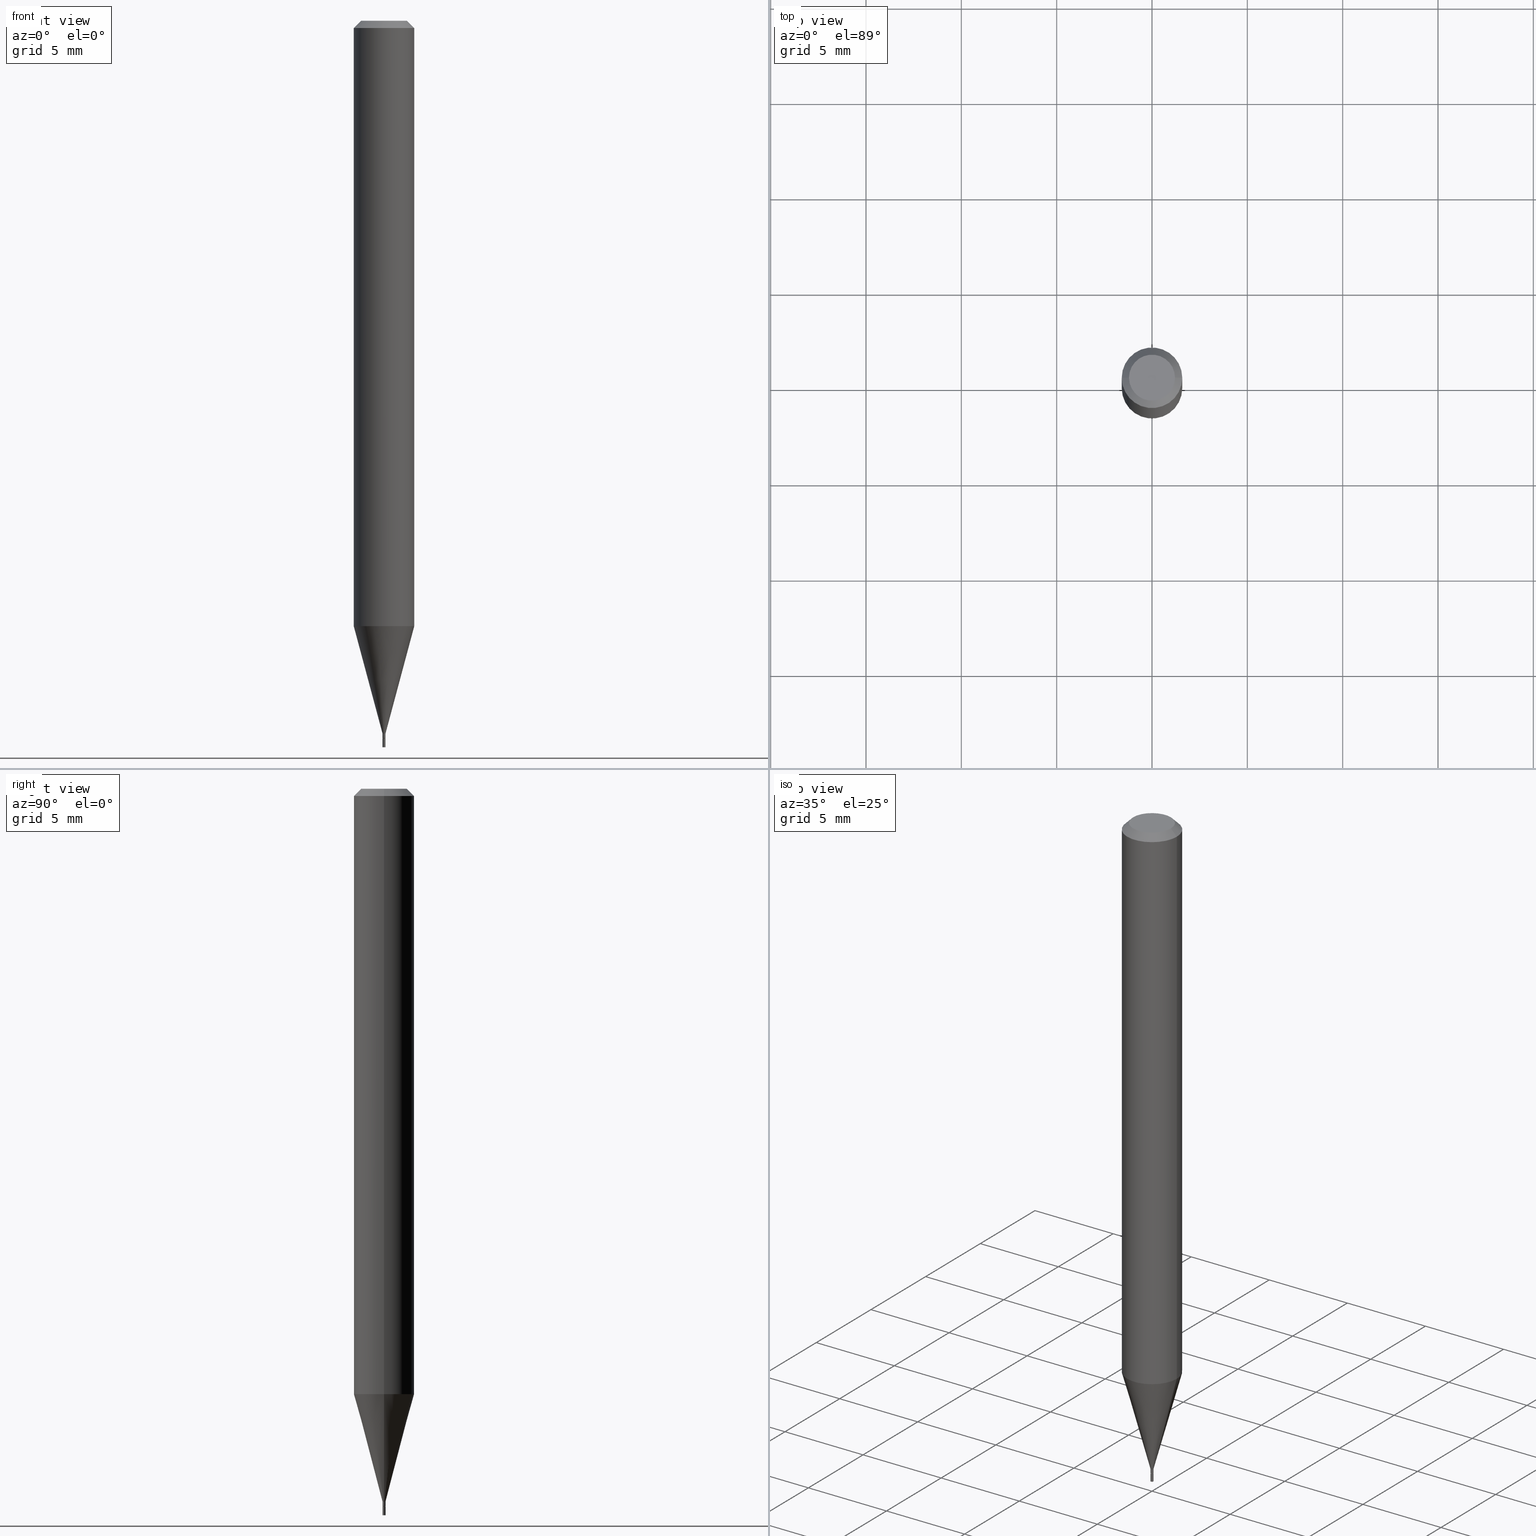
[diagram: canonical four-view strip — front | top / right | iso, engineering-drawing reading convention]
A machine part, canonical four-view strip (front | top / right | iso — engineering-drawing reading convention). The complete STEP part file that produces these views, byte-faithful:
ISO-10303-21;
HEADER;
FILE_DESCRIPTION (( 'STEP AP203' ),
    '1' );
FILE_NAME ('00812.STEP',
    '2024-03-19T22:26:41',
    ( '' ),
    ( '' ),
    'SwSTEP 2.0',
    'SolidWorks 2023',
    '' );
FILE_SCHEMA (( 'CONFIG_CONTROL_DESIGN' ));
ENDSEC;

DATA;
#1 = ORIENTED_EDGE ( 'NONE', *, *, #150, .F. ) ;
#2 = ORIENTED_EDGE ( 'NONE', *, *, #252, .T. ) ;
#3 = DATE_AND_TIME ( #115, #129 ) ;
#4 = EDGE_LOOP ( 'NONE', ( #1, #304, #443, #446 ) ) ;
#5 = APPROVAL_STATUS ( 'not_yet_approved' ) ;
#6 = CARTESIAN_POINT ( 'NONE',  ( 0.000000000000000000, 0.000000000000000000, 0.000000000000000000 ) ) ;
#7 = CIRCLE ( 'NONE', #67, 0.04749999999999999362 ) ;
#8 = APPROVAL_PERSON_ORGANIZATION ( #331, #16, #226 ) ;
#9 = APPROVAL_ROLE ( '' ) ;
#10 = DIRECTION ( 'NONE',  ( -2.445468806185136597E-29, 3.491481338843145583E-15, 1.000000000000000000 ) ) ;
#11 = ORIENTED_EDGE ( 'NONE', *, *, #141, .F. ) ;
#12 = ADVANCED_BREP_SHAPE_REPRESENTATION ( '00812', ( #393, #391, #192 ), #25 ) ;
#13 = SECURITY_CLASSIFICATION_LEVEL ( 'unclassified' ) ;
#14 = EDGE_CURVE ( 'NONE', #56, #132, #456, .T. ) ;
#15 = CARTESIAN_POINT ( 'NONE',  ( -0.04749999999999999362, 3.578768372314273615E-16, 3.591734821858150433E-15 ) ) ;
#16 = APPROVAL ( #156, 'UNSPECIFIED' ) ;
#17 = CARTESIAN_POINT ( 'NONE',  ( 3.668203209277705088E-31, -5.237222008264718399E-17, -0.01499999999999999944 ) ) ;
#18 = CARTESIAN_POINT ( 'NONE',  ( 0.000000000000000000, 0.000000000000000000, 0.000000000000000000 ) ) ;
#19 = CC_DESIGN_PERSON_AND_ORGANIZATION_ASSIGNMENT ( #124, #411, ( #256 ) ) ;
#20 = DIRECTION ( 'NONE',  ( -2.438088387897960049E-29, 3.491481338843145188E-15, 1.000000000000000000 ) ) ;
#21 = EDGE_LOOP ( 'NONE', ( #257, #151, #185, #92 ) ) ;
#22 = CLOSED_SHELL ( 'NONE', ( #113, #143, #37, #212 ) ) ;
#23 = DIRECTION ( 'NONE',  ( -2.445468806185136877E-29, 3.491481338843145188E-15, 1.000000000000000000 ) ) ;
#24 = VECTOR ( 'NONE', #270, 39.37007874015748143 ) ;
#25 =( GEOMETRIC_REPRESENTATION_CONTEXT ( 3 ) GLOBAL_UNCERTAINTY_ASSIGNED_CONTEXT ( ( #430 ) ) GLOBAL_UNIT_ASSIGNED_CONTEXT ( ( #376, #367, #81 ) ) REPRESENTATION_CONTEXT ( 'NONE', 'WORKASPACE' ) );
#26 = DIRECTION ( 'NONE',  ( -2.445468806185136597E-29, 3.491481338843145583E-15, 1.000000000000000000 ) ) ;
#27 = LINE ( 'NONE', #48, #116 ) ;
#28 = EDGE_LOOP ( 'NONE', ( #203, #275, #435, #120 ) ) ;
#29 = CARTESIAN_POINT ( 'NONE',  ( 0.003000000000000000062, -5.258170896297777797E-15, -1.500000000000000222 ) ) ;
#30 = FACE_OUTER_BOUND ( 'NONE', #261, .T. ) ;
#31 = ORIENTED_EDGE ( 'NONE', *, *, #321, .T. ) ;
#32 = PLANE ( 'NONE',  #465 ) ;
#33 = LINE ( 'NONE', #273, #354 ) ;
#34 = AXIS2_PLACEMENT_3D ( 'NONE', #459, #193, #166 ) ;
#35 = AXIS2_PLACEMENT_3D ( 'NONE', #55, #377, #188 ) ;
#36 = PRODUCT_DEFINITION_FORMATION_WITH_SPECIFIED_SOURCE ( 'ANY', '', #280, .NOT_KNOWN. ) ;
#37 = ADVANCED_FACE ( 'NONE', ( #416 ), #346, .T. ) ;
#38 = CC_DESIGN_PERSON_AND_ORGANIZATION_ASSIGNMENT ( #58, #405, ( #296 ) ) ;
#39 = LINE ( 'NONE', #282, #345 ) ;
#40 = VECTOR ( 'NONE', #232, 39.37007874015748143 ) ;
#41 = ADVANCED_FACE ( 'NONE', ( #97 ), #136, .F. ) ;
#42 = DIRECTION ( 'NONE',  ( 1.000000000000000000, -6.982962677686188613E-15, 0.000000000000000000 ) ) ;
#43 = CONICAL_SURFACE ( 'NONE', #309, 0.002500000000000000052, 0.7853981633974723708 ) ;
#44 = LOCAL_TIME ( 18, 26, 41.00000000000000000, #187 ) ;
#45 = PERSON_AND_ORGANIZATION ( #372, #320 ) ;
#46 = DIRECTION ( 'NONE',  ( 0.000000000000000000, 0.000000000000000000, 1.000000000000000000 ) ) ;
#47 = DIRECTION ( 'NONE',  ( -2.445468806185136597E-29, 3.491481338843145583E-15, 1.000000000000000000 ) ) ;
#48 = CARTESIAN_POINT ( 'NONE',  ( -0.003000000000000000062, 2.131628207280300602E-17, -1.475680527076471750E-31 ) ) ;
#49 = ORIENTED_EDGE ( 'NONE', *, *, #328, .T. ) ;
#50 = CIRCLE ( 'NONE', #101, 0.06250000000000000000 ) ;
#51 = ADVANCED_FACE ( 'NONE', ( #375 ), #70, .T. ) ;
#52 = LOCAL_TIME ( 18, 26, 41.00000000000000000, #90 ) ;
#53 = APPROVAL ( #363, 'UNSPECIFIED' ) ;
#54 = PERSON_AND_ORGANIZATION_ROLE ( 'creator' ) ;
#55 = CARTESIAN_POINT ( 'NONE',  ( 3.056696559640561437E-29, -4.364152578637758755E-15, -1.249942976949652174 ) ) ;
#56 = VERTEX_POINT ( 'NONE', #29 ) ;
#57 = ORIENTED_EDGE ( 'NONE', *, *, #266, .T. ) ;
#58 = PERSON_AND_ORGANIZATION ( #372, #320 ) ;
#59 = DIRECTION ( 'NONE',  ( 1.000000000000000000, -6.982962677686332186E-15, 0.000000000000000000 ) ) ;
#60 = DIRECTION ( 'NONE',  ( 1.000000000000000000, -6.982962677686266711E-15, 4.876176775795935793E-29 ) ) ;
#61 = ORIENTED_EDGE ( 'NONE', *, *, #290, .T. ) ;
#62 = FACE_OUTER_BOUND ( 'NONE', #329, .T. ) ;
#63 = DIRECTION ( 'NONE',  ( -2.445468806185136597E-29, 3.491481338843145583E-15, 1.000000000000000000 ) ) ;
#64 = ORIENTED_EDGE ( 'NONE', *, *, #78, .F. ) ;
#65 = EDGE_LOOP ( 'NONE', ( #103, #69, #263, #404 ) ) ;
#66 = CC_DESIGN_DATE_AND_TIME_ASSIGNMENT ( #295, #220, ( #256 ) ) ;
#67 = AXIS2_PLACEMENT_3D ( 'NONE', #392, #223, #253 ) ;
#68 = DIRECTION ( 'NONE',  ( -2.445468806185136597E-29, 3.491481338843145583E-15, 1.000000000000000000 ) ) ;
#69 = ORIENTED_EDGE ( 'NONE', *, *, #236, .T. ) ;
#70 = CYLINDRICAL_SURFACE ( 'NONE', #34, 0.002999999999999922434 ) ;
#71 = CARTESIAN_POINT ( 'NONE',  ( 0.002999999999999921566, -5.160409418810168864E-15, -1.471999999999999975 ) ) ;
#72 = CARTESIAN_POINT ( 'NONE',  ( 0.003000000000000000062, -2.094888803305880087E-17, 1.462853032738780615E-31 ) ) ;
#73 = CONICAL_SURFACE ( 'NONE', #176, 0.06250000000000000000, 0.7853981633973285970 ) ;
#74 = ADVANCED_FACE ( 'NONE', ( #389 ), #32, .F. ) ;
#75 = CONICAL_SURFACE ( 'NONE', #255, 0.002999999999999921566, 0.2617993877991500740 ) ;
#76 = AXIS2_PLACEMENT_3D ( 'NONE', #17, #68, #347 ) ;
#77 = CALENDAR_DATE ( 2024, 19, 3 ) ;
#78 = EDGE_CURVE ( 'NONE', #139, #265, #211, .T. ) ;
#79 = CIRCLE ( 'NONE', #371, 0.003000000000000000062 ) ;
#80 = PERSON_AND_ORGANIZATION_ROLE ( 'design_owner' ) ;
#81 =( NAMED_UNIT ( * ) SI_UNIT ( $, .STERADIAN. ) SOLID_ANGLE_UNIT ( ) );
#82 = DIRECTION ( 'NONE',  ( -2.445468806185136597E-29, 3.491481338843145583E-15, 1.000000000000000000 ) ) ;
#83 = ORIENTED_EDGE ( 'NONE', *, *, #457, .F. ) ;
#84 = ADVANCED_FACE ( 'NONE', ( #272 ), #73, .T. ) ;
#85 = CARTESIAN_POINT ( 'NONE',  ( 3.668203209277704895E-29, -5.237222008264718177E-15, -1.500000000000000222 ) ) ;
#86 = VERTEX_POINT ( 'NONE', #310 ) ;
#87 = DIRECTION ( 'NONE',  ( -0.2588190451025213501, 5.211531920934551042E-15, 0.9659258262890682012 ) ) ;
#88 = CLOSED_SHELL ( 'NONE', ( #51, #432, #84, #390, #183, #424, #197, #449, #41, #74, #447, #106 ) ) ;
#89 = CIRCLE ( 'NONE', #140, 0.003000000000000000062 ) ;
#90 = COORDINATED_UNIVERSAL_TIME_OFFSET ( 5, 0, .BEHIND. ) ;
#91 = DIRECTION ( 'NONE',  ( -2.445468806185136597E-29, 3.491481338843145583E-15, 1.000000000000000000 ) ) ;
#92 = ORIENTED_EDGE ( 'NONE', *, *, #237, .F. ) ;
#93 = CARTESIAN_POINT ( 'NONE',  ( 0.04749999999999999362, -4.035134999187516007E-16, 3.591734821858155166E-15 ) ) ;
#94 = DIRECTION ( 'NONE',  ( 1.000000000000000000, -6.982962677686266711E-15, 4.876176775795935232E-29 ) ) ;
#95 = FACE_OUTER_BOUND ( 'NONE', #175, .T. ) ;
#96 = VERTEX_POINT ( 'NONE', #93 ) ;
#97 = FACE_OUTER_BOUND ( 'NONE', #408, .T. ) ;
#98 = CARTESIAN_POINT ( 'NONE',  ( 0.06250000000000000000, -4.800587745993150425E-15, -1.249942976949652174 ) ) ;
#99 = DIRECTION ( 'NONE',  ( 0.2588190451025213501, 1.565188264969621968E-15, 0.9659258262890682012 ) ) ;
#100 = CIRCLE ( 'NONE', #355, 0.002999999999999922867 ) ;
#101 = AXIS2_PLACEMENT_3D ( 'NONE', #414, #91, #306 ) ;
#102 = AXIS2_PLACEMENT_3D ( 'NONE', #368, #286, #213 ) ;
#103 = ORIENTED_EDGE ( 'NONE', *, *, #267, .T. ) ;
#104 = DIRECTION ( 'NONE',  ( 1.000000000000000000, -6.982962677686332186E-15, 0.000000000000000000 ) ) ;
#105 = CARTESIAN_POINT ( 'NONE',  ( 3.668203209277704895E-29, -5.237222008264718177E-15, -1.500000000000000222 ) ) ;
#106 = ADVANCED_FACE ( 'NONE', ( #62 ), #314, .T. ) ;
#107 = EDGE_CURVE ( 'NONE', #278, #123, #200, .T. ) ;
#108 = DIRECTION ( 'NONE',  ( -2.445468806185136597E-29, 3.491481338843145583E-15, 1.000000000000000000 ) ) ;
#109 = AXIS2_PLACEMENT_3D ( 'NONE', #18, #164, #307 ) ;
#110 = CC_DESIGN_APPROVAL ( #53, ( #296 ) ) ;
#111 = AXIS2_PLACEMENT_3D ( 'NONE', #303, #378, #60 ) ;
#112 = EDGE_LOOP ( 'NONE', ( #61, #313 ) ) ;
#113 = ADVANCED_FACE ( 'NONE', ( #247 ), #349, .T. ) ;
#114 = EDGE_CURVE ( 'NONE', #86, #400, #218, .T. ) ;
#115 = CALENDAR_DATE ( 2024, 19, 3 ) ;
#116 = VECTOR ( 'NONE', #312, 39.37007874015748143 ) ;
#117 = PERSON_AND_ORGANIZATION ( #372, #320 ) ;
#118 = EDGE_CURVE ( 'NONE', #246, #426, #134, .T. ) ;
#119 = DIRECTION ( 'NONE',  ( -2.445468806185136597E-29, 3.491481338843145583E-15, 1.000000000000000000 ) ) ;
#120 = ORIENTED_EDGE ( 'NONE', *, *, #252, .F. ) ;
#121 = DATE_AND_TIME ( #444, #44 ) ;
#122 = CARTESIAN_POINT ( 'NONE',  ( 3.599730082704520905E-29, -5.139460530777110821E-15, -1.471999999999999975 ) ) ;
#123 = VERTEX_POINT ( 'NONE', #98 ) ;
#124 = PERSON_AND_ORGANIZATION ( #372, #320 ) ;
#125 = DIRECTION ( 'NONE',  ( 1.000000000000000000, -6.982962677686191769E-15, 0.000000000000000000 ) ) ;
#126 = VERTEX_POINT ( 'NONE', #452 ) ;
#127 = DIRECTION ( 'NONE',  ( 2.438088387897960049E-29, -3.491481338843145188E-15, -1.000000000000000000 ) ) ;
#128 = CONICAL_SURFACE ( 'NONE', #394, 0.002500000000000000052, 0.7853981633974723708 ) ;
#129 = LOCAL_TIME ( 18, 26, 41.00000000000000000, #297 ) ;
#130 = CARTESIAN_POINT ( 'NONE',  ( -0.002999999999999922867, -5.151313321423318731E-15, -1.481500000000000261 ) ) ;
#131 = CARTESIAN_POINT ( 'NONE',  ( 3.584916967085606921E-29, -5.356492647442320375E-15, -1.500000000000000222 ) ) ;
#132 = VERTEX_POINT ( 'NONE', #338 ) ;
#133 = DIRECTION ( 'NONE',  ( 1.000000000000000000, -6.982962677686332186E-15, 0.000000000000000000 ) ) ;
#134 = LINE ( 'NONE', #243, #24 ) ;
#135 = ORIENTED_EDGE ( 'NONE', *, *, #236, .F. ) ;
#136 = PLANE ( 'NONE',  #180 ) ;
#137 = PRODUCT_RELATED_PRODUCT_CATEGORY ( 'detail', '', ( #280 ) ) ;
#138 = DIRECTION ( 'NONE',  ( 1.000000000000000000, -6.982962677686191769E-15, 0.000000000000000000 ) ) ;
#139 = VERTEX_POINT ( 'NONE', #386 ) ;
#140 = AXIS2_PLACEMENT_3D ( 'NONE', #189, #10, #340 ) ;
#141 = EDGE_CURVE ( 'NONE', #400, #86, #299, .T. ) ;
#142 = DIRECTION ( 'NONE',  ( 1.000000000000000000, -6.982962677686265922E-15, 4.876176775795935793E-29 ) ) ;
#143 = ADVANCED_FACE ( 'NONE', ( #442 ), #209, .F. ) ;
#144 = DIRECTION ( 'NONE',  ( -2.445468806185136597E-29, 3.491481338843145583E-15, 1.000000000000000000 ) ) ;
#145 = CARTESIAN_POINT ( 'NONE',  ( -8.783475466943041190E-44, 1.254047510459085029E-29, 3.591734821858152800E-15 ) ) ;
#146 = CIRCLE ( 'NONE', #360, 0.04749999999999999362 ) ;
#147 = CARTESIAN_POINT ( 'NONE',  ( 0.000000000000000000, 0.000000000000000000, 0.000000000000000000 ) ) ;
#148 = ORIENTED_EDGE ( 'NONE', *, *, #397, .F. ) ;
#149 = AXIS2_PLACEMENT_3D ( 'NONE', #155, #325, #171 ) ;
#150 = EDGE_CURVE ( 'NONE', #96, #86, #202, .T. ) ;
#151 = ORIENTED_EDGE ( 'NONE', *, *, #292, .T. ) ;
#152 = EDGE_CURVE ( 'NONE', #123, #265, #50, .T. ) ;
#153 = DATE_AND_TIME ( #230, #311 ) ;
#154 = DIRECTION ( 'NONE',  ( 1.000000000000000000, -6.982962677686138915E-15, 0.000000000000000000 ) ) ;
#155 = CARTESIAN_POINT ( 'NONE',  ( 3.668203209277705088E-31, -5.237222008264718399E-17, -0.01499999999999999944 ) ) ;
#156 = APPROVAL_STATUS ( 'not_yet_approved' ) ;
#157 = DIRECTION ( 'NONE',  ( -2.445468806185136597E-29, 3.491481338843145583E-15, 1.000000000000000000 ) ) ;
#158 = AXIS2_PLACEMENT_3D ( 'NONE', #249, #454, #388 ) ;
#159 = CC_DESIGN_SECURITY_CLASSIFICATION ( #256, ( #36 ) ) ;
#160 = DIRECTION ( 'NONE',  ( -0.7071067811864628627, 2.468850131081369986E-15, -0.7071067811866321717 ) ) ;
#161 = CYLINDRICAL_SURFACE ( 'NONE', #111, 0.06250000000000000000 ) ;
#162 = ORIENTED_EDGE ( 'NONE', *, *, #417, .T. ) ;
#163 = DIRECTION ( 'NONE',  ( 1.000000000000000000, 0.000000000000000000, 0.000000000000000000 ) ) ;
#164 = DIRECTION ( 'NONE',  ( -2.445468806185136597E-29, 3.491481338843145583E-15, 1.000000000000000000 ) ) ;
#165 = DIRECTION ( 'NONE',  ( -2.445468806185136597E-29, 3.491481338843145583E-15, 1.000000000000000000 ) ) ;
#166 = DIRECTION ( 'NONE',  ( 1.000000000000000000, -6.982962677686266711E-15, 4.876176775795935793E-29 ) ) ;
#167 = CIRCLE ( 'NONE', #461, 0.002500000000000000052 ) ;
#168 = ORIENTED_EDGE ( 'NONE', *, *, #14, .F. ) ;
#169 = CARTESIAN_POINT ( 'NONE',  ( 3.668203209277705088E-31, -5.237222008264718399E-17, -0.01499999999999999944 ) ) ;
#170 = DIRECTION ( 'NONE',  ( -2.445468806185136597E-29, 3.491481338843145583E-15, 1.000000000000000000 ) ) ;
#171 = DIRECTION ( 'NONE',  ( 1.000000000000000000, -6.982962677686266711E-15, 0.000000000000000000 ) ) ;
#172 = ORIENTED_EDGE ( 'NONE', *, *, #333, .F. ) ;
#173 = ORIENTED_EDGE ( 'NONE', *, *, #417, .F. ) ;
#174 = EDGE_CURVE ( 'NONE', #420, #379, #27, .T. ) ;
#175 = EDGE_LOOP ( 'NONE', ( #162, #387, #199, #369 ) ) ;
#176 = AXIS2_PLACEMENT_3D ( 'NONE', #169, #453, #339 ) ;
#177 = CARTESIAN_POINT ( 'NONE',  ( -0.06250000000000000000, -3.920063368787695350E-15, -1.249942976949652174 ) ) ;
#178 = PLANE ( 'NONE',  #433 ) ;
#179 = CARTESIAN_POINT ( 'NONE',  ( 2.094888803309503609E-17, 0.002999999999994825382, -1.482000000000000206 ) ) ;
#180 = AXIS2_PLACEMENT_3D ( 'NONE', #250, #127, #317 ) ;
#181 = AXIS2_PLACEMENT_3D ( 'NONE', #131, #20, #315 ) ;
#182 = AXIS2_PLACEMENT_3D ( 'NONE', #105, #26, #133 ) ;
#183 = ADVANCED_FACE ( 'NONE', ( #30 ), #437, .T. ) ;
#184 = EDGE_CURVE ( 'NONE', #139, #278, #356, .T. ) ;
#185 = ORIENTED_EDGE ( 'NONE', *, *, #352, .T. ) ;
#186 = APPROVAL_ROLE ( '' ) ;
#187 = COORDINATED_UNIVERSAL_TIME_OFFSET ( 5, 0, .BEHIND. ) ;
#188 = DIRECTION ( 'NONE',  ( 1.000000000000000000, -6.982962677686270655E-15, 0.000000000000000000 ) ) ;
#189 = CARTESIAN_POINT ( 'NONE',  ( 3.624184770766373010E-29, -5.174375344165542471E-15, -1.482000000000000206 ) ) ;
#190 = ORIENTED_EDGE ( 'NONE', *, *, #351, .F. ) ;
#191 = AXIS2_PLACEMENT_3D ( 'NONE', #413, #300, #224 ) ;
#192 = AXIS2_PLACEMENT_3D ( 'NONE', #302, #46, #163 ) ;
#193 = DIRECTION ( 'NONE',  ( -2.445468806185136597E-29, 3.491481338843145583E-15, 1.000000000000000000 ) ) ;
#194 = APPROVAL_DATE_TIME ( #3, #53 ) ;
#195 = EDGE_CURVE ( 'NONE', #379, #132, #89, .T. ) ;
#196 = LINE ( 'NONE', #262, #206 ) ;
#197 = ADVANCED_FACE ( 'NONE', ( #264 ), #161, .T. ) ;
#198 = FACE_OUTER_BOUND ( 'NONE', #112, .T. ) ;
#199 = ORIENTED_EDGE ( 'NONE', *, *, #267, .F. ) ;
#200 = LINE ( 'NONE', #421, #284 ) ;
#201 = DIRECTION ( 'NONE',  ( 1.000000000000000000, -6.982962677686138915E-15, 0.000000000000000000 ) ) ;
#202 = LINE ( 'NONE', #343, #40 ) ;
#203 = ORIENTED_EDGE ( 'NONE', *, *, #152, .T. ) ;
#204 = ORIENTED_EDGE ( 'NONE', *, *, #150, .T. ) ;
#205 = AXIS2_PLACEMENT_3D ( 'NONE', #342, #235, #241 ) ;
#206 = VECTOR ( 'NONE', #406, 39.37007874015748143 ) ;
#207 = CC_DESIGN_APPROVAL ( #422, ( #256 ) ) ;
#208 = DIRECTION ( 'NONE',  ( -2.445468806185136877E-29, 3.491481338843145188E-15, 1.000000000000000000 ) ) ;
#209 = PLANE ( 'NONE',  #181 ) ;
#210 = ORIENTED_EDGE ( 'NONE', *, *, #195, .F. ) ;
#211 = LINE ( 'NONE', #288, #353 ) ;
#212 = ADVANCED_FACE ( 'NONE', ( #198 ), #178, .F. ) ;
#213 = DIRECTION ( 'NONE',  ( -1.000000000000000000, 6.982962677686266711E-15, 0.000000000000000000 ) ) ;
#214 = ORIENTED_EDGE ( 'NONE', *, *, #290, .F. ) ;
#215 = CARTESIAN_POINT ( 'NONE',  ( 3.624184770766373010E-29, -5.174375344165542471E-15, -1.482000000000000206 ) ) ;
#216 = CIRCLE ( 'NONE', #191, 0.002999999999999921566 ) ;
#217 = DIRECTION ( 'NONE',  ( -1.000000000000000000, 6.982962677686265922E-15, -4.876176775795935793E-29 ) ) ;
#218 = CIRCLE ( 'NONE', #149, 0.06250000000000000000 ) ;
#219 = LOCAL_TIME ( 18, 26, 41.00000000000000000, #323 ) ;
#220 = DATE_TIME_ROLE ( 'classification_date' ) ;
#221 = CARTESIAN_POINT ( 'NONE',  ( -0.002500000000000000052, -5.153962548597429932E-15, -1.482000000000000206 ) ) ;
#222 = AXIS2_PLACEMENT_3D ( 'NONE', #147, #144, #94 ) ;
#223 = DIRECTION ( 'NONE',  ( -2.445468806185136597E-29, 3.491481338843145583E-15, 1.000000000000000000 ) ) ;
#224 = DIRECTION ( 'NONE',  ( 1.000000000000000000, -6.982962677686191769E-15, 0.000000000000000000 ) ) ;
#225 = ORIENTED_EDGE ( 'NONE', *, *, #107, .F. ) ;
#226 = APPROVAL_ROLE ( '' ) ;
#227 = CARTESIAN_POINT ( 'NONE',  ( 3.624184770766373010E-29, -5.174375344165542471E-15, -1.482000000000000206 ) ) ;
#228 = DIRECTION ( 'NONE',  ( 1.000000000000000000, -6.982962677686191769E-15, 0.000000000000000000 ) ) ;
#229 = ORIENTED_EDGE ( 'NONE', *, *, #358, .F. ) ;
#230 = CALENDAR_DATE ( 2024, 19, 3 ) ;
#231 = DIRECTION ( 'NONE',  ( 0.7071067811865645591, -2.468850131082435343E-15, 0.7071067811865304753 ) ) ;
#232 = DIRECTION ( 'NONE',  ( 0.7071067811864628627, -7.319954787622970478E-15, -0.7071067811866321717 ) ) ;
#233 = ORIENTED_EDGE ( 'NONE', *, *, #184, .T. ) ;
#234 = AXIS2_PLACEMENT_3D ( 'NONE', #215, #108, #251 ) ;
#235 = DIRECTION ( 'NONE',  ( -2.445468806185136597E-29, 3.491481338843145583E-15, 1.000000000000000000 ) ) ;
#236 = EDGE_CURVE ( 'NONE', #426, #139, #39, .T. ) ;
#237 = EDGE_CURVE ( 'NONE', #426, #126, #100, .T. ) ;
#238 = DIRECTION ( 'NONE',  ( 1.000000000000000000, -6.982962677686266711E-15, 4.876176775795935793E-29 ) ) ;
#239 = DIRECTION ( 'NONE',  ( -2.445468806185136597E-29, 3.491481338843145583E-15, 1.000000000000000000 ) ) ;
#240 = EDGE_LOOP ( 'NONE', ( #341, #244, #214, #168 ) ) ;
#241 = DIRECTION ( 'NONE',  ( 1.000000000000000000, -6.982962677686266711E-15, 4.876176775795935232E-29 ) ) ;
#242 = DIRECTION ( 'NONE',  ( -2.445468806185136597E-29, 3.491481338843145583E-15, 1.000000000000000000 ) ) ;
#243 = CARTESIAN_POINT ( 'NONE',  ( -0.002500000000000000052, -5.156611775771539556E-15, -1.482000000000000206 ) ) ;
#244 = ORIENTED_EDGE ( 'NONE', *, *, #174, .T. ) ;
#245 = ORIENTED_EDGE ( 'NONE', *, *, #359, .T. ) ;
#246 = VERTEX_POINT ( 'NONE', #221 ) ;
#247 = FACE_OUTER_BOUND ( 'NONE', #240, .T. ) ;
#248 = AXIS2_PLACEMENT_3D ( 'NONE', #458, #165, #138 ) ;
#249 = CARTESIAN_POINT ( 'NONE',  ( 3.622962036363280209E-29, -5.172629603496120967E-15, -1.481500000000000261 ) ) ;
#250 = CARTESIAN_POINT ( 'NONE',  ( 3.316907271900976096E-16, 0.04749999999999999362, 1.630022047334026855E-15 ) ) ;
#251 = DIRECTION ( 'NONE',  ( 1.000000000000000000, -6.982962677686138915E-15, 0.000000000000000000 ) ) ;
#252 = EDGE_CURVE ( 'NONE', #123, #86, #362, .T. ) ;
#253 = DIRECTION ( 'NONE',  ( 1.000000000000000000, -6.982962677686267499E-15, 5.108144071313017768E-29 ) ) ;
#254 = EDGE_LOOP ( 'NONE', ( #271, #318, #455, #210 ) ) ;
#255 = AXIS2_PLACEMENT_3D ( 'NONE', #122, #157, #125 ) ;
#256 = SECURITY_CLASSIFICATION ( '', '', #13 ) ;
#257 = ORIENTED_EDGE ( 'NONE', *, *, #118, .F. ) ;
#258 = ORIENTED_EDGE ( 'NONE', *, *, #78, .T. ) ;
#259 = PERSON_AND_ORGANIZATION ( #372, #320 ) ;
#260 = CARTESIAN_POINT ( 'NONE',  ( -0.003000000000000000062, -5.184482394142328088E-15, -1.500000000000000222 ) ) ;
#261 = EDGE_LOOP ( 'NONE', ( #245, #258, #316, #225 ) ) ;
#262 = CARTESIAN_POINT ( 'NONE',  ( -0.06250000000000000000, 4.440892098500626162E-16, -3.074334431409316114E-30 ) ) ;
#263 = ORIENTED_EDGE ( 'NONE', *, *, #359, .F. ) ;
#264 = FACE_OUTER_BOUND ( 'NONE', #374, .T. ) ;
#265 = VERTEX_POINT ( 'NONE', #177 ) ;
#266 = EDGE_CURVE ( 'NONE', #126, #278, #33, .T. ) ;
#267 = EDGE_CURVE ( 'NONE', #126, #426, #402, .T. ) ;
#268 = PERSON_AND_ORGANIZATION ( #372, #320 ) ;
#269 = LINE ( 'NONE', #441, #450 ) ;
#270 = DIRECTION ( 'NONE',  ( -0.7071067811865645591, 7.493145998870415691E-15, 0.7071067811865304753 ) ) ;
#271 = ORIENTED_EDGE ( 'NONE', *, *, #174, .F. ) ;
#272 = FACE_OUTER_BOUND ( 'NONE', #415, .T. ) ;
#273 = CARTESIAN_POINT ( 'NONE',  ( 0.002999999999999922434, -2.094888803305825853E-17, 1.462853032738742955E-31 ) ) ;
#274 = CARTESIAN_POINT ( 'NONE',  ( 3.624184770766373010E-29, -5.174375344165542471E-15, -1.482000000000000206 ) ) ;
#275 = ORIENTED_EDGE ( 'NONE', *, *, #397, .T. ) ;
#276 = CARTESIAN_POINT ( 'NONE',  ( 3.624184770766373010E-29, -5.174375344165542471E-15, -1.482000000000000206 ) ) ;
#277 =( LENGTH_UNIT ( ) NAMED_UNIT ( * ) SI_UNIT ( $, .METRE. ) );
#278 = VERTEX_POINT ( 'NONE', #71 ) ;
#279 = DIRECTION ( 'NONE',  ( -2.438088387897960049E-29, 3.491481338843145188E-15, 1.000000000000000000 ) ) ;
#280 = PRODUCT ( '00812', '00812', '', ( #438 ) ) ;
#281 = LENGTH_MEASURE_WITH_UNIT ( LENGTH_MEASURE( 0.02539999999999999897 ), #277 );
#282 = CARTESIAN_POINT ( 'NONE',  ( -0.002999999999999922434, 2.131628207280245443E-17, -1.475680527076433653E-31 ) ) ;
#283 = VERTEX_POINT ( 'NONE', #427 ) ;
#284 = VECTOR ( 'NONE', #99, 39.37007874015747433 ) ;
#285 = DIRECTION ( 'NONE',  ( -2.445468806185136597E-29, 3.491481338843145583E-15, 1.000000000000000000 ) ) ;
#286 = DIRECTION ( 'NONE',  ( 2.445468806185136597E-29, -3.491481338843145583E-15, -1.000000000000000000 ) ) ;
#287 = DIRECTION ( 'NONE',  ( -2.445468806185136597E-29, 3.491481338843145583E-15, 1.000000000000000000 ) ) ;
#288 = CARTESIAN_POINT ( 'NONE',  ( -0.002999999999999921566, -5.118144248704308586E-15, -1.471999999999999975 ) ) ;
#289 = DESIGN_CONTEXT ( 'detailed design', #395, 'design' ) ;
#290 = EDGE_CURVE ( 'NONE', #132, #379, #79, .T. ) ;
#291 = VECTOR ( 'NONE', #208, 39.37007874015748143 ) ;
#292 = EDGE_CURVE ( 'NONE', #246, #283, #423, .T. ) ;
#293 = CIRCLE ( 'NONE', #396, 0.003000000000000000062 ) ;
#294 = APPROVAL_PERSON_ORGANIZATION ( #117, #53, #9 ) ;
#295 = DATE_AND_TIME ( #361, #52 ) ;
#296 = PRODUCT_DEFINITION ( 'UNKNOWN', '', #36, #289 ) ;
#297 = COORDINATED_UNIVERSAL_TIME_OFFSET ( 5, 0, .BEHIND. ) ;
#298 = DIMENSIONAL_EXPONENTS ( 1.000000000000000000, 0.000000000000000000, 0.000000000000000000, 0.000000000000000000, 0.000000000000000000, 0.000000000000000000, 0.000000000000000000 ) ;
#299 = CIRCLE ( 'NONE', #76, 0.06250000000000000000 ) ;
#300 = DIRECTION ( 'NONE',  ( -2.445468806185136597E-29, 3.491481338843145583E-15, 1.000000000000000000 ) ) ;
#301 = ORIENTED_EDGE ( 'NONE', *, *, #107, .T. ) ;
#302 = CARTESIAN_POINT ( 'NONE',  ( 0.000000000000000000, 0.000000000000000000, 0.000000000000000000 ) ) ;
#303 = CARTESIAN_POINT ( 'NONE',  ( 0.000000000000000000, 0.000000000000000000, 0.000000000000000000 ) ) ;
#304 = ORIENTED_EDGE ( 'NONE', *, *, #321, .F. ) ;
#305 = DATE_TIME_ROLE ( 'creation_date' ) ;
#306 = DIRECTION ( 'NONE',  ( 1.000000000000000000, -6.982962677686270655E-15, 0.000000000000000000 ) ) ;
#307 = DIRECTION ( 'NONE',  ( 1.000000000000000000, -6.982962677686266711E-15, 4.876176775795935793E-29 ) ) ;
#308 = CARTESIAN_POINT ( 'NONE',  ( -0.06250000000000000000, -1.764173189510140301E-15, -0.01499999999999999944 ) ) ;
#309 = AXIS2_PLACEMENT_3D ( 'NONE', #227, #242, #201 ) ;
#310 = CARTESIAN_POINT ( 'NONE',  ( 0.06250000000000000000, -4.888073874380388472E-16, -0.01499999999999999944 ) ) ;
#311 = LOCAL_TIME ( 18, 26, 41.00000000000000000, #409 ) ;
#312 = DIRECTION ( 'NONE',  ( -2.445468806185136877E-29, 3.491481338843145188E-15, 1.000000000000000000 ) ) ;
#313 = ORIENTED_EDGE ( 'NONE', *, *, #195, .T. ) ;
#314 = CYLINDRICAL_SURFACE ( 'NONE', #109, 0.002999999999999922434 ) ;
#315 = DIRECTION ( 'NONE',  ( 1.000000000000000000, -6.982962677686265922E-15, 4.876176775795935793E-29 ) ) ;
#316 = ORIENTED_EDGE ( 'NONE', *, *, #152, .F. ) ;
#317 = DIRECTION ( 'NONE',  ( -1.000000000000000000, 6.982962677686265922E-15, -4.876176775795935793E-29 ) ) ;
#318 = ORIENTED_EDGE ( 'NONE', *, *, #457, .T. ) ;
#319 = AXIS2_PLACEMENT_3D ( 'NONE', #407, #239, #228 ) ;
#320 = ORGANIZATION ( 'UNSPECIFIED', 'UNSPECIFIED', '' ) ;
#321 = EDGE_CURVE ( 'NONE', #410, #96, #7, .T. ) ;
#322 = CC_DESIGN_PERSON_AND_ORGANIZATION_ASSIGNMENT ( #259, #336, ( #36 ) ) ;
#323 = COORDINATED_UNIVERSAL_TIME_OFFSET ( 5, 0, .BEHIND. ) ;
#324 = SHAPE_DEFINITION_REPRESENTATION ( #357, #12 ) ;
#325 = DIRECTION ( 'NONE',  ( -2.445468806185136597E-29, 3.491481338843145583E-15, 1.000000000000000000 ) ) ;
#326 = APPROVAL_DATE_TIME ( #434, #422 ) ;
#327 = CONICAL_SURFACE ( 'NONE', #102, 0.06250000000000000000, 0.7853981633973285970 ) ;
#328 = EDGE_CURVE ( 'NONE', #96, #410, #146, .T. ) ;
#329 = EDGE_LOOP ( 'NONE', ( #135, #448, #57, #364 ) ) ;
#330 = APPLICATION_PROTOCOL_DEFINITION ( 'international standard', 'config_control_design', 1994, #395 ) ;
#331 = PERSON_AND_ORGANIZATION ( #372, #320 ) ;
#332 = CYLINDRICAL_SURFACE ( 'NONE', #466, 0.06250000000000000000 ) ;
#333 = EDGE_CURVE ( 'NONE', #265, #123, #412, .T. ) ;
#334 = VECTOR ( 'NONE', #160, 39.37007874015748143 ) ;
#335 = APPROVAL_PERSON_ORGANIZATION ( #45, #422, #186 ) ;
#336 = PERSON_AND_ORGANIZATION_ROLE ( 'design_supplier' ) ;
#337 = FACE_OUTER_BOUND ( 'NONE', #28, .T. ) ;
#338 = CARTESIAN_POINT ( 'NONE',  ( 0.003000000000000000062, -5.195324232198601302E-15, -1.482000000000000206 ) ) ;
#339 = DIRECTION ( 'NONE',  ( -1.000000000000000000, 6.982962677686266711E-15, 0.000000000000000000 ) ) ;
#340 = DIRECTION ( 'NONE',  ( 1.000000000000000000, -6.982962677686332186E-15, 0.000000000000000000 ) ) ;
#341 = ORIENTED_EDGE ( 'NONE', *, *, #358, .T. ) ;
#342 = CARTESIAN_POINT ( 'NONE',  ( 0.000000000000000000, 0.000000000000000000, 0.000000000000000000 ) ) ;
#343 = CARTESIAN_POINT ( 'NONE',  ( 0.06250000000000000000, -4.811533449433679005E-16, -0.01499999999999999944 ) ) ;
#344 = ORIENTED_EDGE ( 'NONE', *, *, #333, .T. ) ;
#345 = VECTOR ( 'NONE', #425, 39.37007874015748143 ) ;
#346 = CYLINDRICAL_SURFACE ( 'NONE', #205, 0.003000000000000000062 ) ;
#347 = DIRECTION ( 'NONE',  ( 1.000000000000000000, -6.982962677686266711E-15, 0.000000000000000000 ) ) ;
#348 = EDGE_LOOP ( 'NONE', ( #64, #233, #301, #172 ) ) ;
#349 = CYLINDRICAL_SURFACE ( 'NONE', #222, 0.003000000000000000062 ) ;
#350 = DIRECTION ( 'NONE',  ( -2.445468806185136877E-29, 3.491481338843145188E-15, 1.000000000000000000 ) ) ;
#351 = EDGE_CURVE ( 'NONE', #410, #400, #436, .T. ) ;
#352 = EDGE_CURVE ( 'NONE', #283, #126, #269, .T. ) ;
#353 = VECTOR ( 'NONE', #87, 39.37007874015747433 ) ;
#354 = VECTOR ( 'NONE', #23, 39.37007874015748143 ) ;
#355 = AXIS2_PLACEMENT_3D ( 'NONE', #462, #287, #42 ) ;
#356 = CIRCLE ( 'NONE', #319, 0.002999999999999921566 ) ;
#357 = PRODUCT_DEFINITION_SHAPE ( 'NONE', 'NONE',  #296 ) ;
#358 = EDGE_CURVE ( 'NONE', #56, #420, #293, .T. ) ;
#359 = EDGE_CURVE ( 'NONE', #278, #139, #216, .T. ) ;
#360 = AXIS2_PLACEMENT_3D ( 'NONE', #145, #170, #399 ) ;
#361 = CALENDAR_DATE ( 2024, 19, 3 ) ;
#362 = LINE ( 'NONE', #431, #291 ) ;
#363 = APPROVAL_STATUS ( 'not_yet_approved' ) ;
#364 = ORIENTED_EDGE ( 'NONE', *, *, #184, .F. ) ;
#365 = CC_DESIGN_DATE_AND_TIME_ASSIGNMENT ( #121, #305, ( #296 ) ) ;
#366 = APPLICATION_CONTEXT ( 'configuration controlled 3d designs of mechanical parts and assemblies' ) ;
#367 =( NAMED_UNIT ( * ) PLANE_ANGLE_UNIT ( ) SI_UNIT ( $, .RADIAN. ) );
#368 = CARTESIAN_POINT ( 'NONE',  ( 3.668203209277705088E-31, -5.237222008264718399E-17, -0.01499999999999999944 ) ) ;
#369 = ORIENTED_EDGE ( 'NONE', *, *, #352, .F. ) ;
#370 = APPROVAL_DATE_TIME ( #153, #16 ) ;
#371 = AXIS2_PLACEMENT_3D ( 'NONE', #460, #285, #104 ) ;
#372 = PERSON ( 'UNSPECIFIED', 'UNSPECIFIED', 'UNSPECIFIED', ('UNSPECIFIED'), ('UNSPECIFIED'), ('UNSPECIFIED') ) ;
#373 = FACE_OUTER_BOUND ( 'NONE', #348, .T. ) ;
#374 = EDGE_LOOP ( 'NONE', ( #148, #344, #2, #11 ) ) ;
#375 = FACE_OUTER_BOUND ( 'NONE', #65, .T. ) ;
#376 =( CONVERSION_BASED_UNIT ( 'INCH', #281 ) LENGTH_UNIT ( ) NAMED_UNIT ( #298 ) );
#377 = DIRECTION ( 'NONE',  ( -2.445468806185136597E-29, 3.491481338843145583E-15, 1.000000000000000000 ) ) ;
#378 = DIRECTION ( 'NONE',  ( -2.445468806185136597E-29, 3.491481338843145583E-15, 1.000000000000000000 ) ) ;
#379 = VERTEX_POINT ( 'NONE', #439 ) ;
#380 = EDGE_LOOP ( 'NONE', ( #229, #83 ) ) ;
#381 = CC_DESIGN_PERSON_AND_ORGANIZATION_ASSIGNMENT ( #401, #80, ( #280 ) ) ;
#382 = CARTESIAN_POINT ( 'NONE',  ( -0.06250000000000000000, 3.840629472727444916E-16, -0.01499999999999999944 ) ) ;
#383 = ORIENTED_EDGE ( 'NONE', *, *, #292, .F. ) ;
#384 = EDGE_LOOP ( 'NONE', ( #173, #383 ) ) ;
#385 = VECTOR ( 'NONE', #350, 39.37007874015748143 ) ;
#386 = CARTESIAN_POINT ( 'NONE',  ( -0.002999999999999921566, -4.519103808746002757E-15, -1.471999999999999975 ) ) ;
#387 = ORIENTED_EDGE ( 'NONE', *, *, #118, .T. ) ;
#388 = DIRECTION ( 'NONE',  ( 1.000000000000000000, -6.982962677686188613E-15, 0.000000000000000000 ) ) ;
#389 = FACE_OUTER_BOUND ( 'NONE', #384, .T. ) ;
#390 = ADVANCED_FACE ( 'NONE', ( #337 ), #332, .T. ) ;
#391 = MANIFOLD_SOLID_BREP ( 'Body-Move/Copy2[2]', #88 ) ;
#392 = CARTESIAN_POINT ( 'NONE',  ( -8.783475466943041190E-44, 1.254047510459085029E-29, 3.591734821858152800E-15 ) ) ;
#393 = MANIFOLD_SOLID_BREP ( 'Body-Move/Copy2[1]', #22 ) ;
#394 = AXIS2_PLACEMENT_3D ( 'NONE', #274, #63, #154 ) ;
#395 = APPLICATION_CONTEXT ( 'configuration controlled 3d designs of mechanical parts and assemblies' ) ;
#396 = AXIS2_PLACEMENT_3D ( 'NONE', #85, #119, #59 ) ;
#397 = EDGE_CURVE ( 'NONE', #265, #400, #196, .T. ) ;
#398 = CC_DESIGN_PERSON_AND_ORGANIZATION_ASSIGNMENT ( #268, #54, ( #36 ) ) ;
#399 = DIRECTION ( 'NONE',  ( 1.000000000000000000, -6.982962677686267499E-15, 5.108144071313017768E-29 ) ) ;
#400 = VERTEX_POINT ( 'NONE', #308 ) ;
#401 = PERSON_AND_ORGANIZATION ( #372, #320 ) ;
#402 = CIRCLE ( 'NONE', #158, 0.002999999999999922867 ) ;
#403 = FACE_OUTER_BOUND ( 'NONE', #4, .T. ) ;
#404 = ORIENTED_EDGE ( 'NONE', *, *, #266, .F. ) ;
#405 = PERSON_AND_ORGANIZATION_ROLE ( 'creator' ) ;
#406 = DIRECTION ( 'NONE',  ( -2.445468806185136877E-29, 3.491481338843145188E-15, 1.000000000000000000 ) ) ;
#407 = CARTESIAN_POINT ( 'NONE',  ( 3.599730082704520905E-29, -5.139460530777110821E-15, -1.471999999999999975 ) ) ;
#408 = EDGE_LOOP ( 'NONE', ( #31, #49 ) ) ;
#409 = COORDINATED_UNIVERSAL_TIME_OFFSET ( 5, 0, .BEHIND. ) ;
#410 = VERTEX_POINT ( 'NONE', #15 ) ;
#411 = PERSON_AND_ORGANIZATION_ROLE ( 'classification_officer' ) ;
#412 = CIRCLE ( 'NONE', #35, 0.06250000000000000000 ) ;
#413 = CARTESIAN_POINT ( 'NONE',  ( 3.599730082704520905E-29, -5.139460530777110821E-15, -1.471999999999999975 ) ) ;
#414 = CARTESIAN_POINT ( 'NONE',  ( 3.056696559640561437E-29, -4.364152578637758755E-15, -1.249942976949652174 ) ) ;
#415 = EDGE_LOOP ( 'NONE', ( #464, #204, #419, #190 ) ) ;
#416 = FACE_OUTER_BOUND ( 'NONE', #254, .T. ) ;
#417 = EDGE_CURVE ( 'NONE', #283, #246, #167, .T. ) ;
#418 = FACE_OUTER_BOUND ( 'NONE', #21, .T. ) ;
#419 = ORIENTED_EDGE ( 'NONE', *, *, #114, .T. ) ;
#420 = VERTEX_POINT ( 'NONE', #260 ) ;
#421 = CARTESIAN_POINT ( 'NONE',  ( 0.002999999999999921566, -5.160409418810168864E-15, -1.471999999999999975 ) ) ;
#422 = APPROVAL ( #5, 'UNSPECIFIED' ) ;
#423 = CIRCLE ( 'NONE', #234, 0.002500000000000000052 ) ;
#424 = ADVANCED_FACE ( 'NONE', ( #373 ), #75, .T. ) ;
#425 = DIRECTION ( 'NONE',  ( -2.445468806185136877E-29, 3.491481338843145188E-15, 1.000000000000000000 ) ) ;
#426 = VERTEX_POINT ( 'NONE', #130 ) ;
#427 = CARTESIAN_POINT ( 'NONE',  ( 0.002500000000000000052, -5.191832750859757506E-15, -1.482000000000000206 ) ) ;
#428 = CIRCLE ( 'NONE', #182, 0.003000000000000000062 ) ;
#429 = DIRECTION ( 'NONE',  ( 2.438088387897960049E-29, -3.491481338843145188E-15, -1.000000000000000000 ) ) ;
#430 = UNCERTAINTY_MEASURE_WITH_UNIT (LENGTH_MEASURE( 1.000000000000000082E-05 ), #376, 'distance_accuracy_value', 'NONE');
#431 = CARTESIAN_POINT ( 'NONE',  ( 0.06250000000000000000, -4.364351673553916694E-16, 3.047610484872459871E-30 ) ) ;
#432 = ADVANCED_FACE ( 'NONE', ( #95 ), #128, .T. ) ;
#433 = AXIS2_PLACEMENT_3D ( 'NONE', #179, #429, #217 ) ;
#434 = DATE_AND_TIME ( #77, #219 ) ;
#435 = ORIENTED_EDGE ( 'NONE', *, *, #114, .F. ) ;
#436 = LINE ( 'NONE', #382, #334 ) ;
#437 = CONICAL_SURFACE ( 'NONE', #248, 0.002999999999999921566, 0.2617993877991500740 ) ;
#438 = MECHANICAL_CONTEXT ( 'NONE', #366, 'mechanical' ) ;
#439 = CARTESIAN_POINT ( 'NONE',  ( -0.003000000000000000062, -5.184482394142328088E-15, -1.482000000000000206 ) ) ;
#440 = APPLICATION_PROTOCOL_DEFINITION ( 'international standard', 'config_control_design', 1994, #366 ) ;
#441 = CARTESIAN_POINT ( 'NONE',  ( 0.002500000000000000052, -5.191832750859757506E-15, -1.482000000000000206 ) ) ;
#442 = FACE_OUTER_BOUND ( 'NONE', #380, .T. ) ;
#443 = ORIENTED_EDGE ( 'NONE', *, *, #351, .T. ) ;
#444 = CALENDAR_DATE ( 2024, 19, 3 ) ;
#445 = DIRECTION ( 'NONE',  ( 1.000000000000000000, -6.982962677686138915E-15, 0.000000000000000000 ) ) ;
#446 = ORIENTED_EDGE ( 'NONE', *, *, #141, .T. ) ;
#447 = ADVANCED_FACE ( 'NONE', ( #418 ), #43, .T. ) ;
#448 = ORIENTED_EDGE ( 'NONE', *, *, #237, .T. ) ;
#449 = ADVANCED_FACE ( 'NONE', ( #403 ), #327, .T. ) ;
#450 = VECTOR ( 'NONE', #231, 39.37007874015748143 ) ;
#451 = CARTESIAN_POINT ( 'NONE',  ( 3.624184770766373010E-29, -5.174375344165542471E-15, -1.482000000000000206 ) ) ;
#452 = CARTESIAN_POINT ( 'NONE',  ( 0.002999999999999922867, -5.193578491529179010E-15, -1.481500000000000261 ) ) ;
#453 = DIRECTION ( 'NONE',  ( 2.445468806185136597E-29, -3.491481338843145583E-15, -1.000000000000000000 ) ) ;
#454 = DIRECTION ( 'NONE',  ( -2.445468806185136597E-29, 3.491481338843145583E-15, 1.000000000000000000 ) ) ;
#455 = ORIENTED_EDGE ( 'NONE', *, *, #14, .T. ) ;
#456 = LINE ( 'NONE', #72, #385 ) ;
#457 = EDGE_CURVE ( 'NONE', #420, #56, #428, .T. ) ;
#458 = CARTESIAN_POINT ( 'NONE',  ( 3.599730082704520905E-29, -5.139460530777110821E-15, -1.471999999999999975 ) ) ;
#459 = CARTESIAN_POINT ( 'NONE',  ( 0.000000000000000000, 0.000000000000000000, 0.000000000000000000 ) ) ;
#460 = CARTESIAN_POINT ( 'NONE',  ( 3.624184770766373010E-29, -5.174375344165542471E-15, -1.482000000000000206 ) ) ;
#461 = AXIS2_PLACEMENT_3D ( 'NONE', #451, #82, #445 ) ;
#462 = CARTESIAN_POINT ( 'NONE',  ( 3.622962036363280209E-29, -5.172629603496120967E-15, -1.481500000000000261 ) ) ;
#463 = CC_DESIGN_APPROVAL ( #16, ( #36 ) ) ;
#464 = ORIENTED_EDGE ( 'NONE', *, *, #328, .F. ) ;
#465 = AXIS2_PLACEMENT_3D ( 'NONE', #276, #279, #142 ) ;
#466 = AXIS2_PLACEMENT_3D ( 'NONE', #6, #47, #238 ) ;
ENDSEC;
END-ISO-10303-21;
